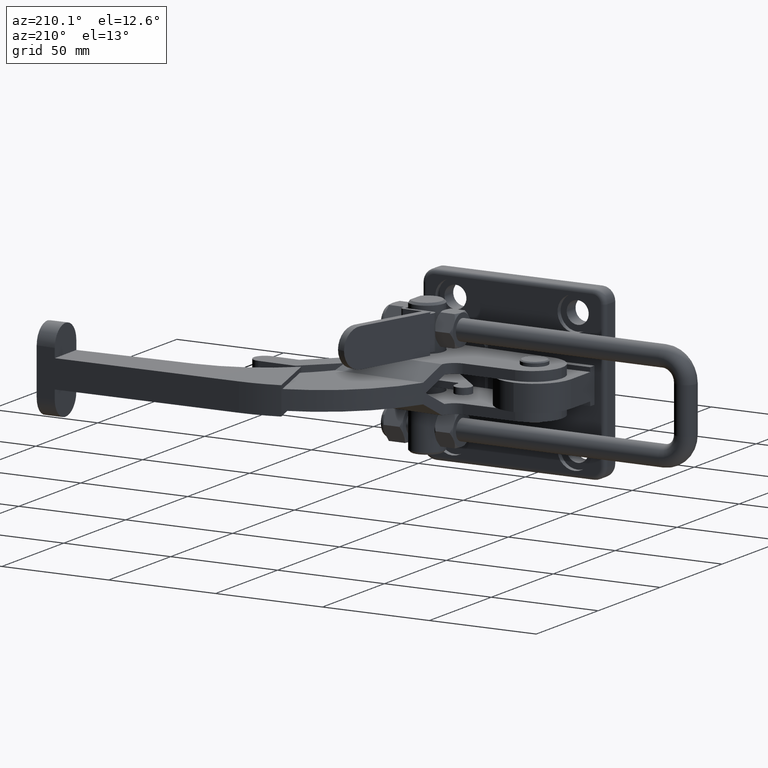
[diagram: clean part render]
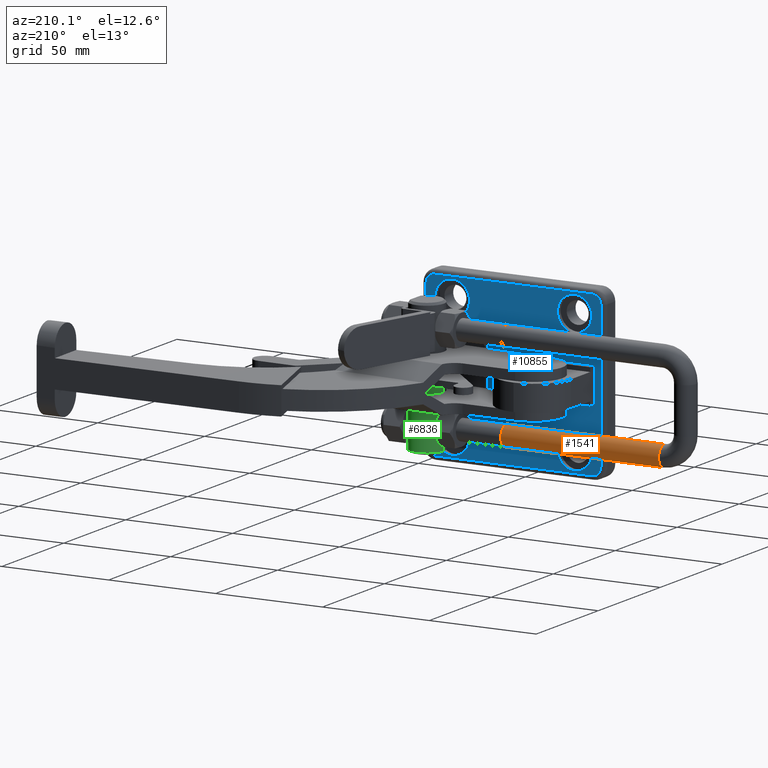
[diagram: same view with three faces highlighted in distinct colors, each labeled with its STEP entity id]
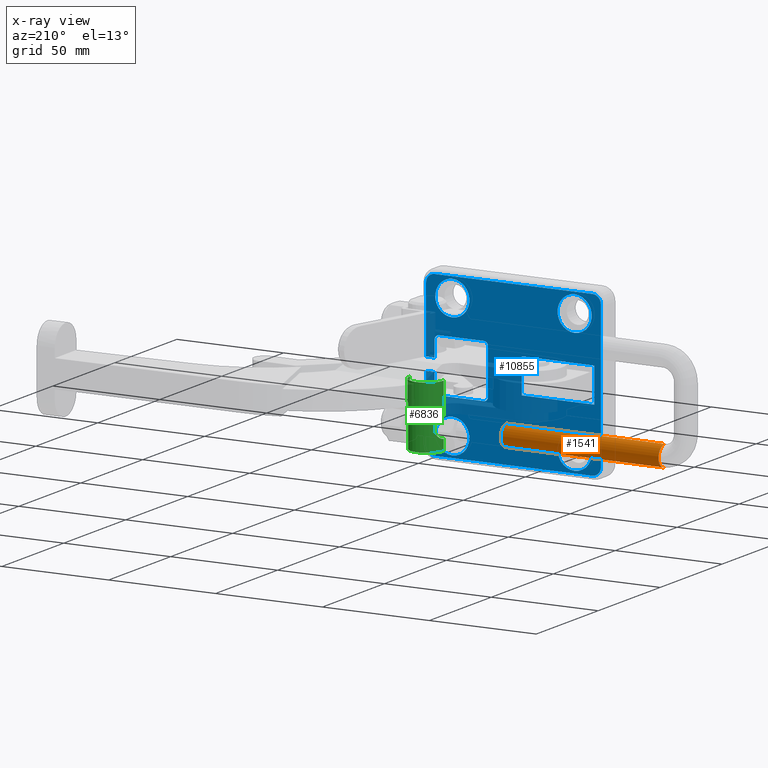
[diagram: x-ray of the same camera — body ghosted, the three highlighted faces saturated]
A machine part, auxiliary view with three faces highlighted in distinct colors.
The next image is the same camera in x-ray (body ghosted, the three faces saturated) — at least one of them is partly hidden behind the body in this view.
Their STEP definitions:

[orange] entity #1541 — the highlighted cylindrical surface (edge-blend (fillet) strip) has radius 4.8 mm, axis along (1, -0.0094, -0).
#68 = DIRECTION ( 'NONE',  ( 0.9999554806276920200, -0.009435929346993528500, -6.448701490263534400E-017 ) ) ;
#430 = DIRECTION ( 'NONE',  ( 0.9999554806276919100, -0.009435929346993528500, -6.448701490263533200E-017 ) ) ;
#556 = VERTEX_POINT ( 'NONE', #2407 ) ;
#653 = EDGE_CURVE ( 'NONE', #11789, #556, #8145, .T. ) ;
#940 = CARTESIAN_POINT ( 'NONE',  ( -81.68333289743378600, 28.55493690099337600, -25.49999999999996100 ) ) ;
#1089 = EDGE_CURVE ( 'NONE', #1533, #2440, #8614, .T. ) ;
#1533 = VERTEX_POINT ( 'NONE', #10164 ) ;
#1541 = ADVANCED_FACE ( 'NONE', ( #7523 ), #2678, .T. ) ;
#1637 = EDGE_LOOP ( 'NONE', ( #5199, #4474, #6189, #10182 ) ) ;
#2005 = LINE ( 'NONE', #940, #9322 ) ;
#2249 = DIRECTION ( 'NONE',  ( -1.807003620809174400E-016, 0.0000000000000000000, -1.000000000000000000 ) ) ;
#2407 = CARTESIAN_POINT ( 'NONE',  ( -7.486636234858880600, 27.85479094344645600, -25.49999999999996800 ) ) ;
#2440 = VERTEX_POINT ( 'NONE', #4470 ) ;
#2678 = CYLINDRICAL_SURFACE ( 'NONE', #5718, 4.799999999999998900 ) ;
#2847 = CARTESIAN_POINT ( 'NONE',  ( -81.68333289743378600, 28.55493690099337600, -20.69999999999996000 ) ) ;
#3820 = VECTOR ( 'NONE', #430, 1000.000000000000100 ) ;
#4470 = CARTESIAN_POINT ( 'NONE',  ( -81.68333289743378600, 28.55493690099337600, -15.89999999999996300 ) ) ;
#4474 = ORIENTED_EDGE ( 'NONE', *, *, #6827, .T. ) ;
#5199 = ORIENTED_EDGE ( 'NONE', *, *, #1089, .T. ) ;
#5718 = AXIS2_PLACEMENT_3D ( 'NONE', #2847, #68, #8311 ) ;
#5768 = EDGE_CURVE ( 'NONE', #1533, #556, #2005, .T. ) ;
#5797 = DIRECTION ( 'NONE',  ( -0.9999554806276920200, 0.009435929346993528500, 1.167914262708094500E-016 ) ) ;
#6038 = CARTESIAN_POINT ( 'NONE',  ( -7.486636234858880600, 27.85479094344645600, -15.89999999999997000 ) ) ;
#6189 = ORIENTED_EDGE ( 'NONE', *, *, #653, .T. ) ;
#6240 = LINE ( 'NONE', #6776, #3820 ) ;
#6776 = CARTESIAN_POINT ( 'NONE',  ( -81.68333289743378600, 28.55493690099337600, -15.89999999999996300 ) ) ;
#6827 = EDGE_CURVE ( 'NONE', #2440, #11789, #6240, .T. ) ;
#7325 = DIRECTION ( 'NONE',  ( 0.9999554806276919100, -0.009435929346993528500, -6.448701490263533200E-017 ) ) ;
#7347 = DIRECTION ( 'NONE',  ( 0.9999554806276920200, -0.009435929346993528500, -3.783995689991944200E-017 ) ) ;
#7523 = FACE_OUTER_BOUND ( 'NONE', #1637, .T. ) ;
#7624 = AXIS2_PLACEMENT_3D ( 'NONE', #9218, #7347, #8278 ) ;
#8072 = AXIS2_PLACEMENT_3D ( 'NONE', #8523, #5797, #2249 ) ;
#8145 = CIRCLE ( 'NONE', #8072, 4.799999999999998900 ) ;
#8278 = DIRECTION ( 'NONE',  ( 0.0000000000000000000, 0.0000000000000000000, -1.000000000000000000 ) ) ;
#8311 = DIRECTION ( 'NONE',  ( 0.0000000000000000000, 0.0000000000000000000, -1.000000000000000000 ) ) ;
#8523 = CARTESIAN_POINT ( 'NONE',  ( -7.486636234858894000, 27.85479094344647100, -20.69999999999995000 ) ) ;
#8614 = CIRCLE ( 'NONE', #7624, 4.799999999999998900 ) ;
#9218 = CARTESIAN_POINT ( 'NONE',  ( -81.68333289743378600, 28.55493690099337600, -20.69999999999996000 ) ) ;
#9322 = VECTOR ( 'NONE', #7325, 1000.000000000000100 ) ;
#10164 = CARTESIAN_POINT ( 'NONE',  ( -81.68333289743378600, 28.55493690099337600, -25.49999999999996100 ) ) ;
#10182 = ORIENTED_EDGE ( 'NONE', *, *, #5768, .F. ) ;
#11789 = VERTEX_POINT ( 'NONE', #6038 ) ;

[blue] entity #10855 — the highlighted planar face has unit normal (0, 1, 0).
#24 = DIRECTION ( 'NONE',  ( 0.0000000000000000000, 0.0000000000000000000, 1.000000000000000000 ) ) ;
#86 = VERTEX_POINT ( 'NONE', #7499 ) ;
#166 = CARTESIAN_POINT ( 'NONE',  ( 34.89999999999998400, 9.600000000000047600, 12.50000000000002500 ) ) ;
#193 = LINE ( 'NONE', #6387, #6916 ) ;
#207 = CARTESIAN_POINT ( 'NONE',  ( -28.60000000000000100, 9.600000000000054700, 28.59999999999998700 ) ) ;
#230 = CARTESIAN_POINT ( 'NONE',  ( 28.59999999999998700, 9.600000000000049400, -28.60000000000000100 ) ) ;
#232 = EDGE_CURVE ( 'NONE', #86, #2616, #5147, .T. ) ;
#353 = ORIENTED_EDGE ( 'NONE', *, *, #10370, .F. ) ;
#447 = CARTESIAN_POINT ( 'NONE',  ( -28.60000000000000100, 9.600000000000054700, 20.59999999999998700 ) ) ;
#543 = VECTOR ( 'NONE', #4679, 1000.000000000000000 ) ;
#575 = DIRECTION ( 'NONE',  ( -1.214306433183765000E-016, -1.000000000000000000, -6.505213034913026600E-019 ) ) ;
#684 = CARTESIAN_POINT ( 'NONE',  ( 28.59999999999998700, 9.600000000000049400, 20.59999999999998700 ) ) ;
#709 = VECTOR ( 'NONE', #3487, 1000.000000000000000 ) ;
#735 = CARTESIAN_POINT ( 'NONE',  ( -28.60000000000000100, 9.600000000000054700, 28.59999999999998700 ) ) ;
#784 = DIRECTION ( 'NONE',  ( -0.0000000000000000000, -0.0000000000000000000, -1.000000000000000000 ) ) ;
#849 = CARTESIAN_POINT ( 'NONE',  ( -3.899999999999987000, 9.599999999999996100, 6.099999999999999600 ) ) ;
#877 = DIRECTION ( 'NONE',  ( -1.214306433183765000E-016, -1.000000000000000000, -6.505213034913026600E-019 ) ) ;
#896 = VERTEX_POINT ( 'NONE', #3593 ) ;
#939 = EDGE_CURVE ( 'NONE', #3423, #7610, #4731, .T. ) ;
#1010 = VERTEX_POINT ( 'NONE', #9889 ) ;
#1038 = VERTEX_POINT ( 'NONE', #11029 ) ;
#1142 = DIRECTION ( 'NONE',  ( 0.0000000000000000000, 0.0000000000000000000, 1.000000000000000000 ) ) ;
#1150 = CIRCLE ( 'NONE', #4448, 8.000000000000000000 ) ;
#1169 = DIRECTION ( 'NONE',  ( 0.0000000000000000000, 0.0000000000000000000, 1.000000000000000000 ) ) ;
#1170 = LINE ( 'NONE', #6251, #5734 ) ;
#1173 = DIRECTION ( 'NONE',  ( -1.214306433183765000E-016, -1.000000000000000000, -6.505213034913026600E-019 ) ) ;
#1224 = ORIENTED_EDGE ( 'NONE', *, *, #5640, .T. ) ;
#1241 = CARTESIAN_POINT ( 'NONE',  ( -36.90000000000001300, 9.600000000000056500, 37.69999999999999600 ) ) ;
#1257 = CARTESIAN_POINT ( 'NONE',  ( 13.89999999999999500, 9.600000000000051200, -12.50000000000003900 ) ) ;
#1264 = EDGE_CURVE ( 'NONE', #8518, #896, #5466, .T. ) ;
#1298 = CARTESIAN_POINT ( 'NONE',  ( 13.89999999999999500, 9.600000000000051200, -10.50000000000003700 ) ) ;
#1348 = EDGE_CURVE ( 'NONE', #2278, #10728, #8541, .T. ) ;
#1366 = CIRCLE ( 'NONE', #1463, 8.000000000000003600 ) ;
#1406 = EDGE_CURVE ( 'NONE', #9157, #10806, #2248, .T. ) ;
#1451 = DIRECTION ( 'NONE',  ( 1.214306433183765000E-016, 1.000000000000000000, 6.505213034913026600E-019 ) ) ;
#1463 = AXIS2_PLACEMENT_3D ( 'NONE', #6041, #575, #6957 ) ;
#1485 = ORIENTED_EDGE ( 'NONE', *, *, #3883, .T. ) ;
#1677 = DIRECTION ( 'NONE',  ( 0.0000000000000000000, 0.0000000000000000000, 1.000000000000000000 ) ) ;
#1687 = CARTESIAN_POINT ( 'NONE',  ( -37.89999999999999100, 9.600000000000056500, -8.099999999999999600 ) ) ;
#1732 = VECTOR ( 'NONE', #11666, 1000.000000000000000 ) ;
#1806 = CIRCLE ( 'NONE', #10181, 4.000000000000003600 ) ;
#1906 = ORIENTED_EDGE ( 'NONE', *, *, #5380, .F. ) ;
#2018 = VERTEX_POINT ( 'NONE', #4936 ) ;
#2040 = VERTEX_POINT ( 'NONE', #7301 ) ;
#2099 = EDGE_CURVE ( 'NONE', #11144, #1038, #1806, .T. ) ;
#2155 = ORIENTED_EDGE ( 'NONE', *, *, #7625, .T. ) ;
#2164 = ORIENTED_EDGE ( 'NONE', *, *, #4826, .F. ) ;
#2182 = DIRECTION ( 'NONE',  ( 0.0000000000000000000, 0.0000000000000000000, 1.000000000000000000 ) ) ;
#2217 = DIRECTION ( 'NONE',  ( 0.0000000000000000000, 0.0000000000000000000, 1.000000000000000000 ) ) ;
#2221 = VERTEX_POINT ( 'NONE', #10561 ) ;
#2248 = CIRCLE ( 'NONE', #9657, 2.000000000000001800 ) ;
#2278 = VERTEX_POINT ( 'NONE', #6914 ) ;
#2287 = VECTOR ( 'NONE', #9101, 1000.000000000000000 ) ;
#2342 = CARTESIAN_POINT ( 'NONE',  ( -28.60000000000000100, 9.600000000000054700, -20.60000000000000100 ) ) ;
#2362 = EDGE_CURVE ( 'NONE', #896, #1010, #8654, .T. ) ;
#2376 = CARTESIAN_POINT ( 'NONE',  ( -28.60000000000000100, 9.600000000000054700, 36.59999999999998700 ) ) ;
#2412 = DIRECTION ( 'NONE',  ( 1.214306433183765000E-016, 1.000000000000000000, 6.505213034913026600E-019 ) ) ;
#2496 = VECTOR ( 'NONE', #9504, 1000.000000000000000 ) ;
#2581 = CARTESIAN_POINT ( 'NONE',  ( -37.89999999999999100, 9.599999999999999600, 6.099999999999999600 ) ) ;
#2597 = EDGE_LOOP ( 'NONE', ( #7208, #9648 ) ) ;
#2609 = EDGE_LOOP ( 'NONE', ( #11758, #2155 ) ) ;
#2616 = VERTEX_POINT ( 'NONE', #4828 ) ;
#2703 = LINE ( 'NONE', #11115, #543 ) ;
#2764 = VERTEX_POINT ( 'NONE', #5943 ) ;
#2771 = CARTESIAN_POINT ( 'NONE',  ( -91.06957981114061300, 9.600000000000061800, 7.786935825212733900E-017 ) ) ;
#2781 = VERTEX_POINT ( 'NONE', #6856 ) ;
#2819 = CIRCLE ( 'NONE', #10152, 4.000000000000003600 ) ;
#2856 = DIRECTION ( 'NONE',  ( 1.214306433183765000E-016, 1.000000000000000000, 6.505213034913026600E-019 ) ) ;
#2904 = CIRCLE ( 'NONE', #9293, 2.000000000000001800 ) ;
#2976 = FACE_BOUND ( 'NONE', #9956, .T. ) ;
#2985 = CARTESIAN_POINT ( 'NONE',  ( 13.89999999999999500, 9.600000000000051200, 12.49999999999996300 ) ) ;
#3077 = AXIS2_PLACEMENT_3D ( 'NONE', #8321, #2856, #9257 ) ;
#3142 = ORIENTED_EDGE ( 'NONE', *, *, #1264, .T. ) ;
#3244 = AXIS2_PLACEMENT_3D ( 'NONE', #2771, #5508, #24 ) ;
#3299 = ORIENTED_EDGE ( 'NONE', *, *, #1348, .F. ) ;
#3336 = CARTESIAN_POINT ( 'NONE',  ( -28.60000000000000100, 9.600000000000054700, -28.60000000000000100 ) ) ;
#3381 = EDGE_LOOP ( 'NONE', ( #7904, #6840, #10801, #1906 ) ) ;
#3403 = EDGE_CURVE ( 'NONE', #2018, #2040, #1366, .T. ) ;
#3423 = VERTEX_POINT ( 'NONE', #11564 ) ;
#3424 = LINE ( 'NONE', #10834, #709 ) ;
#3487 = DIRECTION ( 'NONE',  ( -1.000000000000000000, 1.040834085586084300E-016, -6.979551485375434800E-019 ) ) ;
#3492 = VERTEX_POINT ( 'NONE', #684 ) ;
#3532 = EDGE_CURVE ( 'NONE', #11235, #6110, #5079, .T. ) ;
#3589 = EDGE_CURVE ( 'NONE', #7061, #9157, #193, .T. ) ;
#3593 = CARTESIAN_POINT ( 'NONE',  ( 36.89999999999999100, 9.600000000000047600, -37.70000000000002400 ) ) ;
#3730 = ORIENTED_EDGE ( 'NONE', *, *, #3403, .T. ) ;
#3741 = ORIENTED_EDGE ( 'NONE', *, *, #3589, .F. ) ;
#3772 = VERTEX_POINT ( 'NONE', #6709 ) ;
#3774 = EDGE_CURVE ( 'NONE', #2616, #3772, #4919, .T. ) ;
#3818 = LINE ( 'NONE', #6902, #5964 ) ;
#3861 = AXIS2_PLACEMENT_3D ( 'NONE', #6632, #1173, #7557 ) ;
#3880 = VECTOR ( 'NONE', #7141, 1000.000000000000000 ) ;
#3883 = EDGE_CURVE ( 'NONE', #9402, #5395, #4054, .T. ) ;
#3897 = VERTEX_POINT ( 'NONE', #2376 ) ;
#3933 = EDGE_CURVE ( 'NONE', #3492, #2764, #8349, .T. ) ;
#3961 = CARTESIAN_POINT ( 'NONE',  ( -3.899999999999993700, 9.600000000000052900, -8.099999999999999600 ) ) ;
#3973 = ORIENTED_EDGE ( 'NONE', *, *, #232, .F. ) ;
#3987 = DIRECTION ( 'NONE',  ( -0.0000000000000000000, 0.0000000000000000000, -1.000000000000000000 ) ) ;
#4054 = CIRCLE ( 'NONE', #5280, 4.000000000000003600 ) ;
#4071 = AXIS2_PLACEMENT_3D ( 'NONE', #735, #7130, #1677 ) ;
#4093 = ORIENTED_EDGE ( 'NONE', *, *, #11342, .T. ) ;
#4138 = CARTESIAN_POINT ( 'NONE',  ( 36.89999999999999100, 9.600000000000047600, 37.69999999999999600 ) ) ;
#4227 = CARTESIAN_POINT ( 'NONE',  ( 11.90000000000000000, 9.600000000000051200, 10.49999999999996800 ) ) ;
#4247 = DIRECTION ( 'NONE',  ( 0.0000000000000000000, 0.0000000000000000000, 1.000000000000000000 ) ) ;
#4386 = LINE ( 'NONE', #10431, #9285 ) ;
#4448 = AXIS2_PLACEMENT_3D ( 'NONE', #207, #6598, #1142 ) ;
#4476 = VERTEX_POINT ( 'NONE', #10151 ) ;
#4494 = CARTESIAN_POINT ( 'NONE',  ( -36.89999999999996300, 9.600000000000056500, -33.69999999999999600 ) ) ;
#4525 = AXIS2_PLACEMENT_3D ( 'NONE', #6328, #877, #7267 ) ;
#4530 = VECTOR ( 'NONE', #6101, 1000.000000000000000 ) ;
#4679 = DIRECTION ( 'NONE',  ( -0.0000000000000000000, 0.0000000000000000000, -1.000000000000000000 ) ) ;
#4731 = LINE ( 'NONE', #10736, #1732 ) ;
#4807 = VERTEX_POINT ( 'NONE', #3961 ) ;
#4826 = EDGE_CURVE ( 'NONE', #3772, #2278, #2904, .T. ) ;
#4828 = CARTESIAN_POINT ( 'NONE',  ( 34.89999999999998400, 9.600000000000047600, -12.50000000000003900 ) ) ;
#4919 = LINE ( 'NONE', #1257, #2496 ) ;
#4936 = CARTESIAN_POINT ( 'NONE',  ( 28.59999999999998700, 9.600000000000049400, -36.60000000000000900 ) ) ;
#4948 = CARTESIAN_POINT ( 'NONE',  ( -40.90000000000002000, 9.600000000000056500, 33.69999999999999600 ) ) ;
#5079 = LINE ( 'NONE', #2581, #9675 ) ;
#5118 = EDGE_CURVE ( 'NONE', #2764, #3492, #11063, .T. ) ;
#5147 = CIRCLE ( 'NONE', #5470, 2.000000000000001800 ) ;
#5165 = CARTESIAN_POINT ( 'NONE',  ( 28.59999999999998700, 9.600000000000049400, 28.59999999999998700 ) ) ;
#5250 = CARTESIAN_POINT ( 'NONE',  ( 36.89999999999999100, 9.600000000000047600, 37.69999999999999600 ) ) ;
#5280 = AXIS2_PLACEMENT_3D ( 'NONE', #6908, #1451, #7828 ) ;
#5380 = EDGE_CURVE ( 'NONE', #11235, #4476, #6279, .T. ) ;
#5388 = CARTESIAN_POINT ( 'NONE',  ( 34.89999999999998400, 9.600000000000047600, 10.50000000000002300 ) ) ;
#5395 = VERTEX_POINT ( 'NONE', #1241 ) ;
#5414 = DIRECTION ( 'NONE',  ( 0.0000000000000000000, 0.0000000000000000000, 1.000000000000000000 ) ) ;
#5466 = CIRCLE ( 'NONE', #9261, 4.000000000000003600 ) ;
#5470 = AXIS2_PLACEMENT_3D ( 'NONE', #5680, #10826, #9893 ) ;
#5508 = DIRECTION ( 'NONE',  ( 1.214306433183765000E-016, 1.000000000000000000, -0.0000000000000000000 ) ) ;
#5640 = EDGE_CURVE ( 'NONE', #6417, #3897, #10453, .T. ) ;
#5670 = EDGE_CURVE ( 'NONE', #7604, #2221, #3424, .T. ) ;
#5680 = CARTESIAN_POINT ( 'NONE',  ( 34.89999999999998400, 9.600000000000047600, -10.50000000000003700 ) ) ;
#5734 = VECTOR ( 'NONE', #784, 1000.000000000000000 ) ;
#5741 = ORIENTED_EDGE ( 'NONE', *, *, #5916, .T. ) ;
#5778 = VERTEX_POINT ( 'NONE', #6396 ) ;
#5809 = ORIENTED_EDGE ( 'NONE', *, *, #10672, .T. ) ;
#5811 = EDGE_LOOP ( 'NONE', ( #11534, #5809, #3142, #7864, #4093, #10948, #1485, #10958, #7992, #6710, #8515, #10722, #10734, #3741, #9628, #3299, #2164, #10136, #3973, #353 ) ) ;
#5852 = CIRCLE ( 'NONE', #7736, 8.000000000000000000 ) ;
#5916 = EDGE_CURVE ( 'NONE', #3897, #6417, #1150, .T. ) ;
#5943 = CARTESIAN_POINT ( 'NONE',  ( 28.59999999999998700, 9.600000000000049400, 36.59999999999998700 ) ) ;
#5964 = VECTOR ( 'NONE', #7821, 1000.000000000000000 ) ;
#6041 = CARTESIAN_POINT ( 'NONE',  ( 28.59999999999998700, 9.600000000000049400, -28.60000000000000100 ) ) ;
#6066 = DIRECTION ( 'NONE',  ( 0.0000000000000000000, 0.0000000000000000000, 1.000000000000000000 ) ) ;
#6088 = CARTESIAN_POINT ( 'NONE',  ( -37.89999999999999100, 9.600000000000056500, 8.099999999999999600 ) ) ;
#6101 = DIRECTION ( 'NONE',  ( 3.304235192336774500E-016, -3.439160614977206000E-032, 1.000000000000000000 ) ) ;
#6110 = VERTEX_POINT ( 'NONE', #6879 ) ;
#6199 = EDGE_CURVE ( 'NONE', #5395, #11144, #9309, .T. ) ;
#6251 = CARTESIAN_POINT ( 'NONE',  ( 40.89999999999999100, 9.600000000000047600, 1.699782059316492000E-016 ) ) ;
#6279 = LINE ( 'NONE', #11259, #10902 ) ;
#6286 = DIRECTION ( 'NONE',  ( 0.0000000000000000000, 0.0000000000000000000, 1.000000000000000000 ) ) ;
#6328 = CARTESIAN_POINT ( 'NONE',  ( 28.59999999999998700, 9.600000000000049400, 28.59999999999998700 ) ) ;
#6387 = CARTESIAN_POINT ( 'NONE',  ( 13.89999999999999500, 9.600000000000051200, 12.49999999999996300 ) ) ;
#6396 = CARTESIAN_POINT ( 'NONE',  ( -28.60000000000000100, 9.600000000000054700, -36.60000000000000100 ) ) ;
#6417 = VERTEX_POINT ( 'NONE', #447 ) ;
#6468 = CARTESIAN_POINT ( 'NONE',  ( 40.89999999999999100, 9.600000000000047600, 3.000000000000000000 ) ) ;
#6472 = VERTEX_POINT ( 'NONE', #2342 ) ;
#6552 = VECTOR ( 'NONE', #11667, 1000.000000000000000 ) ;
#6593 = CIRCLE ( 'NONE', #3861, 8.000000000000000000 ) ;
#6598 = DIRECTION ( 'NONE',  ( -1.214306433183765000E-016, -1.000000000000000000, -6.505213034913026600E-019 ) ) ;
#6625 = DIRECTION ( 'NONE',  ( -1.214306433183765000E-016, -1.000000000000000000, -6.505213034913026600E-019 ) ) ;
#6632 = CARTESIAN_POINT ( 'NONE',  ( -28.60000000000000100, 9.600000000000054700, -28.60000000000000100 ) ) ;
#6709 = CARTESIAN_POINT ( 'NONE',  ( 13.89999999999999500, 9.600000000000051200, -12.50000000000003900 ) ) ;
#6710 = ORIENTED_EDGE ( 'NONE', *, *, #7989, .T. ) ;
#6779 = EDGE_CURVE ( 'NONE', #10806, #2221, #4386, .T. ) ;
#6840 = ORIENTED_EDGE ( 'NONE', *, *, #7969, .F. ) ;
#6856 = CARTESIAN_POINT ( 'NONE',  ( -40.89999999999996300, 9.600000000000056500, -33.69999999999999600 ) ) ;
#6879 = CARTESIAN_POINT ( 'NONE',  ( -37.89999999999998400, 9.600000000000056500, -8.099999999999999600 ) ) ;
#6902 = CARTESIAN_POINT ( 'NONE',  ( 40.89999999999999100, 9.600000000000047600, 1.699782059316492000E-016 ) ) ;
#6908 = CARTESIAN_POINT ( 'NONE',  ( -36.90000000000001300, 9.600000000000056500, 33.69999999999999600 ) ) ;
#6914 = CARTESIAN_POINT ( 'NONE',  ( 11.89999999999998100, 9.600000000000051200, -10.50000000000003700 ) ) ;
#6916 = VECTOR ( 'NONE', #8240, 1000.000000000000000 ) ;
#6955 = FACE_BOUND ( 'NONE', #3381, .T. ) ;
#6957 = DIRECTION ( 'NONE',  ( 0.0000000000000000000, 0.0000000000000000000, 1.000000000000000000 ) ) ;
#7061 = VERTEX_POINT ( 'NONE', #2985 ) ;
#7080 = DIRECTION ( 'NONE',  ( -1.000000000000000000, 1.040834085586084300E-016, 3.753938553613395300E-016 ) ) ;
#7087 = CARTESIAN_POINT ( 'NONE',  ( -40.90000000000002000, 9.600000000000056500, 33.69999999999999600 ) ) ;
#7111 = AXIS2_PLACEMENT_3D ( 'NONE', #5165, #11582, #6066 ) ;
#7130 = DIRECTION ( 'NONE',  ( -1.214306433183765000E-016, -1.000000000000000000, -6.505213034913026600E-019 ) ) ;
#7141 = DIRECTION ( 'NONE',  ( -1.000000000000000000, 1.040834085586084300E-016, -6.979551485375434800E-019 ) ) ;
#7208 = ORIENTED_EDGE ( 'NONE', *, *, #3933, .T. ) ;
#7267 = DIRECTION ( 'NONE',  ( 0.0000000000000000000, 0.0000000000000000000, 1.000000000000000000 ) ) ;
#7301 = CARTESIAN_POINT ( 'NONE',  ( 28.59999999999998700, 9.600000000000049400, -20.59999999999999800 ) ) ;
#7418 = EDGE_CURVE ( 'NONE', #2781, #9402, #11792, .T. ) ;
#7499 = CARTESIAN_POINT ( 'NONE',  ( 36.89999999999999100, 9.600000000000047600, -10.50000000000003700 ) ) ;
#7557 = DIRECTION ( 'NONE',  ( 0.0000000000000000000, 0.0000000000000000000, 1.000000000000000000 ) ) ;
#7604 = VERTEX_POINT ( 'NONE', #6468 ) ;
#7610 = VERTEX_POINT ( 'NONE', #11153 ) ;
#7619 = DIRECTION ( 'NONE',  ( 1.000000000000000000, -1.040834085586084300E-016, 6.979551485375434800E-019 ) ) ;
#7625 = EDGE_CURVE ( 'NONE', #6472, #5778, #6593, .T. ) ;
#7669 = DIRECTION ( 'NONE',  ( 1.214306433183765000E-016, 1.000000000000000000, 6.505213034913026600E-019 ) ) ;
#7736 = AXIS2_PLACEMENT_3D ( 'NONE', #3336, #9753, #4247 ) ;
#7821 = DIRECTION ( 'NONE',  ( -0.0000000000000000000, -0.0000000000000000000, -1.000000000000000000 ) ) ;
#7828 = DIRECTION ( 'NONE',  ( 0.0000000000000000000, 0.0000000000000000000, 1.000000000000000000 ) ) ;
#7864 = ORIENTED_EDGE ( 'NONE', *, *, #2362, .T. ) ;
#7873 = CARTESIAN_POINT ( 'NONE',  ( 36.89999999999999100, 9.600000000000047600, -33.70000000000002400 ) ) ;
#7904 = ORIENTED_EDGE ( 'NONE', *, *, #3532, .T. ) ;
#7969 = EDGE_CURVE ( 'NONE', #4807, #6110, #8742, .T. ) ;
#7989 = EDGE_CURVE ( 'NONE', #1038, #7604, #1170, .T. ) ;
#7992 = ORIENTED_EDGE ( 'NONE', *, *, #2099, .T. ) ;
#7999 = DIRECTION ( 'NONE',  ( -0.0000000000000000000, 0.0000000000000000000, -1.000000000000000000 ) ) ;
#8011 = EDGE_LOOP ( 'NONE', ( #3730, #10790 ) ) ;
#8223 = PLANE ( 'NONE',  #3244 ) ;
#8240 = DIRECTION ( 'NONE',  ( 1.000000000000000000, -1.040834085586084300E-016, 2.974509628251636900E-015 ) ) ;
#8321 = CARTESIAN_POINT ( 'NONE',  ( 13.89999999999999500, 9.600000000000051200, 10.49999999999996800 ) ) ;
#8349 = CIRCLE ( 'NONE', #7111, 8.000000000000000000 ) ;
#8372 = VECTOR ( 'NONE', #7080, 1000.000000000000000 ) ;
#8515 = ORIENTED_EDGE ( 'NONE', *, *, #5670, .T. ) ;
#8518 = VERTEX_POINT ( 'NONE', #9110 ) ;
#8541 = LINE ( 'NONE', #10729, #4530 ) ;
#8654 = LINE ( 'NONE', #11659, #8372 ) ;
#8742 = LINE ( 'NONE', #1687, #3880 ) ;
#8797 = DIRECTION ( 'NONE',  ( 0.0000000000000000000, 0.0000000000000000000, 1.000000000000000000 ) ) ;
#8882 = DIRECTION ( 'NONE',  ( -8.236075850334991000E-016, 8.572388476501051500E-032, 1.000000000000000000 ) ) ;
#8883 = EDGE_CURVE ( 'NONE', #5778, #6472, #5852, .T. ) ;
#9029 = EDGE_CURVE ( 'NONE', #4476, #4807, #9592, .T. ) ;
#9101 = DIRECTION ( 'NONE',  ( -0.0000000000000000000, 0.0000000000000000000, -1.000000000000000000 ) ) ;
#9110 = CARTESIAN_POINT ( 'NONE',  ( 40.89999999999999100, 9.600000000000047600, -33.70000000000002400 ) ) ;
#9157 = VERTEX_POINT ( 'NONE', #166 ) ;
#9232 = AXIS2_PLACEMENT_3D ( 'NONE', #230, #6625, #1169 ) ;
#9257 = DIRECTION ( 'NONE',  ( 0.0000000000000000000, 0.0000000000000000000, 1.000000000000000000 ) ) ;
#9261 = AXIS2_PLACEMENT_3D ( 'NONE', #7873, #2412, #8797 ) ;
#9285 = VECTOR ( 'NONE', #3987, 1000.000000000000000 ) ;
#9293 = AXIS2_PLACEMENT_3D ( 'NONE', #1298, #7669, #2217 ) ;
#9309 = LINE ( 'NONE', #5250, #6552 ) ;
#9402 = VERTEX_POINT ( 'NONE', #4948 ) ;
#9419 = FACE_OUTER_BOUND ( 'NONE', #5811, .T. ) ;
#9504 = DIRECTION ( 'NONE',  ( -1.000000000000000000, 1.040834085586084300E-016, -6.979551485375434800E-019 ) ) ;
#9592 = LINE ( 'NONE', #849, #2287 ) ;
#9628 = ORIENTED_EDGE ( 'NONE', *, *, #10358, .F. ) ;
#9648 = ORIENTED_EDGE ( 'NONE', *, *, #5118, .T. ) ;
#9657 = AXIS2_PLACEMENT_3D ( 'NONE', #5388, #11808, #6286 ) ;
#9675 = VECTOR ( 'NONE', #7999, 1000.000000000000000 ) ;
#9716 = FACE_BOUND ( 'NONE', #2597, .T. ) ;
#9725 = CIRCLE ( 'NONE', #3077, 1.999999999999994900 ) ;
#9753 = DIRECTION ( 'NONE',  ( -1.214306433183765000E-016, -1.000000000000000000, -6.505213034913026600E-019 ) ) ;
#9889 = CARTESIAN_POINT ( 'NONE',  ( -36.89999999999996300, 9.600000000000056500, -37.69999999999999600 ) ) ;
#9893 = DIRECTION ( 'NONE',  ( 0.0000000000000000000, 0.0000000000000000000, 1.000000000000000000 ) ) ;
#9956 = EDGE_LOOP ( 'NONE', ( #1224, #5741 ) ) ;
#9961 = CARTESIAN_POINT ( 'NONE',  ( 36.89999999999999100, 9.600000000000047600, 10.50000000000002300 ) ) ;
#9982 = FACE_BOUND ( 'NONE', #8011, .T. ) ;
#10136 = ORIENTED_EDGE ( 'NONE', *, *, #3774, .F. ) ;
#10151 = CARTESIAN_POINT ( 'NONE',  ( -3.899999999999987000, 9.600000000000052900, 8.099999999999999600 ) ) ;
#10152 = AXIS2_PLACEMENT_3D ( 'NONE', #4494, #10917, #5414 ) ;
#10181 = AXIS2_PLACEMENT_3D ( 'NONE', #10639, #10874, #2182 ) ;
#10358 = EDGE_CURVE ( 'NONE', #10728, #7061, #9725, .T. ) ;
#10370 = EDGE_CURVE ( 'NONE', #7610, #86, #2703, .T. ) ;
#10431 = CARTESIAN_POINT ( 'NONE',  ( 36.89999999999999100, 9.600000000000047600, -10.50000000000003700 ) ) ;
#10440 = EDGE_CURVE ( 'NONE', #2040, #2018, #10710, .T. ) ;
#10453 = CIRCLE ( 'NONE', #4071, 8.000000000000000000 ) ;
#10561 = CARTESIAN_POINT ( 'NONE',  ( 36.89999999999999100, 9.600000000000047600, 3.000000000000000000 ) ) ;
#10639 = CARTESIAN_POINT ( 'NONE',  ( 36.89999999999999100, 9.600000000000047600, 33.69999999999999600 ) ) ;
#10672 = EDGE_CURVE ( 'NONE', #3423, #8518, #3818, .T. ) ;
#10710 = CIRCLE ( 'NONE', #9232, 8.000000000000003600 ) ;
#10722 = ORIENTED_EDGE ( 'NONE', *, *, #6779, .F. ) ;
#10728 = VERTEX_POINT ( 'NONE', #4227 ) ;
#10729 = CARTESIAN_POINT ( 'NONE',  ( 11.89999999999999300, 9.600000000000051200, -10.50000000000003700 ) ) ;
#10734 = ORIENTED_EDGE ( 'NONE', *, *, #1406, .F. ) ;
#10736 = CARTESIAN_POINT ( 'NONE',  ( -91.06957981114061300, 9.600000000000061800, -3.000000000000000000 ) ) ;
#10790 = ORIENTED_EDGE ( 'NONE', *, *, #10440, .T. ) ;
#10801 = ORIENTED_EDGE ( 'NONE', *, *, #9029, .F. ) ;
#10806 = VERTEX_POINT ( 'NONE', #9961 ) ;
#10826 = DIRECTION ( 'NONE',  ( 1.214306433183765000E-016, 1.000000000000000000, 6.505213034913026600E-019 ) ) ;
#10834 = CARTESIAN_POINT ( 'NONE',  ( -91.06957981114061300, 9.600000000000061800, 3.000000000000000000 ) ) ;
#10855 = ADVANCED_FACE ( 'NONE', ( #2976, #9716, #9982, #11850, #9419, #6955 ), #8223, .T. ) ;
#10874 = DIRECTION ( 'NONE',  ( 1.214306433183765000E-016, 1.000000000000000000, 6.505213034913026600E-019 ) ) ;
#10902 = VECTOR ( 'NONE', #7619, 1000.000000000000000 ) ;
#10917 = DIRECTION ( 'NONE',  ( 1.214306433183765000E-016, 1.000000000000000000, 6.505213034913026600E-019 ) ) ;
#10948 = ORIENTED_EDGE ( 'NONE', *, *, #7418, .T. ) ;
#10958 = ORIENTED_EDGE ( 'NONE', *, *, #6199, .T. ) ;
#11029 = CARTESIAN_POINT ( 'NONE',  ( 40.89999999999999100, 9.600000000000047600, 33.69999999999999600 ) ) ;
#11063 = CIRCLE ( 'NONE', #4525, 8.000000000000000000 ) ;
#11115 = CARTESIAN_POINT ( 'NONE',  ( 36.89999999999999100, 9.600000000000047600, -10.50000000000003700 ) ) ;
#11144 = VERTEX_POINT ( 'NONE', #4138 ) ;
#11153 = CARTESIAN_POINT ( 'NONE',  ( 36.89999999999999100, 9.600000000000047600, -3.000000000000000000 ) ) ;
#11235 = VERTEX_POINT ( 'NONE', #6088 ) ;
#11259 = CARTESIAN_POINT ( 'NONE',  ( -37.89999999999999100, 9.600000000000056500, 8.099999999999999600 ) ) ;
#11342 = EDGE_CURVE ( 'NONE', #1010, #2781, #2819, .T. ) ;
#11513 = VECTOR ( 'NONE', #8882, 1000.000000000000000 ) ;
#11534 = ORIENTED_EDGE ( 'NONE', *, *, #939, .F. ) ;
#11564 = CARTESIAN_POINT ( 'NONE',  ( 40.89999999999999100, 9.600000000000047600, -3.000000000000000000 ) ) ;
#11582 = DIRECTION ( 'NONE',  ( -1.214306433183765000E-016, -1.000000000000000000, -6.505213034913026600E-019 ) ) ;
#11659 = CARTESIAN_POINT ( 'NONE',  ( -91.06957981114064200, 9.600000000000061800, -37.69999999999997400 ) ) ;
#11666 = DIRECTION ( 'NONE',  ( -1.000000000000000000, 1.040834085586084300E-016, -6.979551485375434800E-019 ) ) ;
#11667 = DIRECTION ( 'NONE',  ( 1.000000000000000000, -1.040834085586084300E-016, 6.979551485375434800E-019 ) ) ;
#11758 = ORIENTED_EDGE ( 'NONE', *, *, #8883, .T. ) ;
#11792 = LINE ( 'NONE', #7087, #11513 ) ;
#11808 = DIRECTION ( 'NONE',  ( 1.214306433183765000E-016, 1.000000000000000000, 6.505213034913026600E-019 ) ) ;
#11850 = FACE_BOUND ( 'NONE', #2609, .T. ) ;

[green] entity #6836 — the highlighted cylindrical surface (edge-blend (fillet) strip) has radius 7.9 mm, axis along (0, -0, 1).
#9 = CARTESIAN_POINT ( 'NONE',  ( 22.21204153978354500, 27.57454384184075400, -15.89999999999997000 ) ) ;
#191 = VERTEX_POINT ( 'NONE', #3552 ) ;
#251 = AXIS2_PLACEMENT_3D ( 'NONE', #2677, #3567, #4496 ) ;
#335 = DIRECTION ( 'NONE',  ( 0.0000000000000000000, -1.000000000000000000, 0.0000000000000000000 ) ) ;
#354 = CARTESIAN_POINT ( 'NONE',  ( 23.76100729149638400, 32.19949272859746300, -21.97290795748754300 ) ) ;
#391 = CARTESIAN_POINT ( 'NONE',  ( 22.32170129849706800, 28.85092969845335600, -25.33787710134512800 ) ) ;
#513 = CIRCLE ( 'NONE', #3415, 7.900000000000002100 ) ;
#686 = VERTEX_POINT ( 'NONE', #6665 ) ;
#727 = CARTESIAN_POINT ( 'NONE',  ( 22.23796978953841100, 28.21739433872516000, -15.93248462023362100 ) ) ;
#765 = CARTESIAN_POINT ( 'NONE',  ( 23.64924080547595900, 32.04446478520432600, -18.97815958200854400 ) ) ;
#839 = ORIENTED_EDGE ( 'NONE', *, *, #8656, .T. ) ;
#1117 = CARTESIAN_POINT ( 'NONE',  ( 38.01133813370108100, 27.42545615815825500, -31.50000000000000000 ) ) ;
#1147 = DIRECTION ( 'NONE',  ( 1.119284656414895400E-017, -5.835477685239703500E-020, 1.000000000000000000 ) ) ;
#1292 = CARTESIAN_POINT ( 'NONE',  ( 23.52538312842254000, 31.86486112959513400, -22.85083748204109000 ) ) ;
#1302 = CARTESIAN_POINT ( 'NONE',  ( 38.01133813370108100, 27.42545615815825500, -1.400000000000019200 ) ) ;
#1331 = CARTESIAN_POINT ( 'NONE',  ( 22.21511255729135900, 27.89998934647599800, -25.49999999999997900 ) ) ;
#1671 = CARTESIAN_POINT ( 'NONE',  ( 22.32539205953216300, 28.84446962623920600, -16.06856308757300800 ) ) ;
#1706 = CARTESIAN_POINT ( 'NONE',  ( 23.75548037264865200, 32.19168464581253600, -19.42948868464617700 ) ) ;
#1930 = EDGE_CURVE ( 'NONE', #3971, #4390, #513, .T. ) ;
#2020 = VECTOR ( 'NONE', #3869, 1000.000000000000000 ) ;
#2053 = B_SPLINE_CURVE_WITH_KNOTS ( 'NONE', 3,
 ( #5292, #2536, #727, #7123, #1671, #8044, #2582, #8963, #3478, #9899, #4399, #10828, #5328, #11738, #6231, #765, #7163, #1706, #8077, #2624, #9006, #3517 ),
 .UNSPECIFIED., .F., .F.,
 ( 4, 2, 2, 2, 2, 2, 2, 2, 2, 2, 4 ),
 ( 0.01541168358939840200, 0.01637309432767694600, 0.01685379969681621500, 0.01733450506595548800, 0.01829591580423402300, 0.01925732654251255400, 0.02021873728079108900, 0.02118014801906962400, 0.02166085338820889600, 0.02214155875734816900, 0.02310296949562671800 ),
 .UNSPECIFIED. ) ;
#2208 = CARTESIAN_POINT ( 'NONE',  ( 23.22496446954350400, 31.37586048184173000, -23.63470450677531400 ) ) ;
#2210 = DIRECTION ( 'NONE',  ( 1.119284656414895400E-017, -5.835477685239703500E-020, 1.000000000000000000 ) ) ;
#2265 = VECTOR ( 'NONE', #2210, 1000.000000000000000 ) ;
#2502 = VERTEX_POINT ( 'NONE', #9121 ) ;
#2536 = CARTESIAN_POINT ( 'NONE',  ( 22.21509959965751000, 27.89861618475525200, -15.89999999999996700 ) ) ;
#2582 = CARTESIAN_POINT ( 'NONE',  ( 22.41735927661337500, 29.29707142756239000, -16.21768192143997200 ) ) ;
#2624 = CARTESIAN_POINT ( 'NONE',  ( 23.85643993492416100, 32.32577912302819800, -20.05079555058650300 ) ) ;
#2627 = ORIENTED_EDGE ( 'NONE', *, *, #5316, .F. ) ;
#2677 = CARTESIAN_POINT ( 'NONE',  ( 30.11168983674231500, 27.49999999999950300, -31.50000000000000000 ) ) ;
#2839 = LINE ( 'NONE', #6742, #2265 ) ;
#3109 = CARTESIAN_POINT ( 'NONE',  ( 22.90681528308801500, 30.74926790235889500, -24.30764014651713000 ) ) ;
#3252 = VECTOR ( 'NONE', #7723, 1000.000000000000000 ) ;
#3415 = AXIS2_PLACEMENT_3D ( 'NONE', #9580, #9748, #6783 ) ;
#3473 = CARTESIAN_POINT ( 'NONE',  ( 22.21204153978354500, 27.57454384184075400, -31.50000000000000000 ) ) ;
#3478 = CARTESIAN_POINT ( 'NONE',  ( 22.61480713697075000, 30.00625313798286300, -16.55211404406332700 ) ) ;
#3517 = CARTESIAN_POINT ( 'NONE',  ( 23.88270985989414900, 32.35899253426261200, -20.69999999999996700 ) ) ;
#3552 = CARTESIAN_POINT ( 'NONE',  ( 22.21204153978354500, 27.57454384184075400, -1.400000000000019200 ) ) ;
#3567 = DIRECTION ( 'NONE',  ( 1.119284656414895400E-017, -5.835477685239703500E-020, 1.000000000000000000 ) ) ;
#3869 = DIRECTION ( 'NONE',  ( 1.119284656414895400E-017, -5.835477685239703500E-020, 1.000000000000000000 ) ) ;
#3971 = VERTEX_POINT ( 'NONE', #7507 ) ;
#3991 = CARTESIAN_POINT ( 'NONE',  ( 23.88270985989414200, 32.35899253426261200, -21.02208074216416400 ) ) ;
#4031 = CARTESIAN_POINT ( 'NONE',  ( 22.66254528161001900, 30.13411872551490600, -24.76091364002904200 ) ) ;
#4052 = EDGE_CURVE ( 'NONE', #11379, #2502, #9646, .T. ) ;
#4289 = ORIENTED_EDGE ( 'NONE', *, *, #11868, .T. ) ;
#4390 = VERTEX_POINT ( 'NONE', #9113 ) ;
#4399 = CARTESIAN_POINT ( 'NONE',  ( 22.90827328747242900, 30.75239988896061400, -17.09527067378621400 ) ) ;
#4496 = DIRECTION ( 'NONE',  ( -0.9999554806276921300, 0.009435929346993584100, 0.0000000000000000000 ) ) ;
#4824 = ORIENTED_EDGE ( 'NONE', *, *, #8966, .F. ) ;
#4905 = AXIS2_PLACEMENT_3D ( 'NONE', #6606, #1147, #7531 ) ;
#4957 = CARTESIAN_POINT ( 'NONE',  ( 22.53118443148749600, 29.72857149712370600, -24.99092482742176800 ) ) ;
#5121 = CYLINDRICAL_SURFACE ( 'NONE', #251, 7.900000000000001200 ) ;
#5292 = CARTESIAN_POINT ( 'NONE',  ( 22.21204153978354500, 27.57454384184075400, -15.89999999999997000 ) ) ;
#5316 = EDGE_CURVE ( 'NONE', #686, #6364, #6869, .T. ) ;
#5328 = CARTESIAN_POINT ( 'NONE',  ( 23.22623938837925900, 31.37808250231411500, -17.76831048288375600 ) ) ;
#5453 = CARTESIAN_POINT ( 'NONE',  ( 23.88270985989414900, 32.35899253426261200, -20.69999999999996700 ) ) ;
#5806 = DIRECTION ( 'NONE',  ( -6.494464799301924000E-020, -7.683799999775721400E-020, -1.000000000000000000 ) ) ;
#5828 = CARTESIAN_POINT ( 'NONE',  ( 23.85748481357489600, 32.32714410648979000, -21.34104032318963800 ) ) ;
#5869 = CARTESIAN_POINT ( 'NONE',  ( 22.38042186626358900, 29.15129533536357800, -25.24405148190654600 ) ) ;
#6231 = CARTESIAN_POINT ( 'NONE',  ( 23.52402561589149600, 31.86283288426760400, -18.54497276619576200 ) ) ;
#6302 = ORIENTED_EDGE ( 'NONE', *, *, #10052, .T. ) ;
#6364 = VERTEX_POINT ( 'NONE', #1302 ) ;
#6378 = EDGE_LOOP ( 'NONE', ( #2627, #839, #6302, #6711, #4289, #9321, #4824, #9311, #8864 ) ) ;
#6529 = FACE_OUTER_BOUND ( 'NONE', #6378, .T. ) ;
#6606 = CARTESIAN_POINT ( 'NONE',  ( 30.11168983674231500, 27.49999999999950300, -11.00000000000000000 ) ) ;
#6665 = CARTESIAN_POINT ( 'NONE',  ( 38.01133813370108100, 27.42545615815825500, -11.00000000000000000 ) ) ;
#6680 = CARTESIAN_POINT ( 'NONE',  ( 35.66495593502213500, 33.11882867167977900, -11.00000000000000000 ) ) ;
#6711 = ORIENTED_EDGE ( 'NONE', *, *, #1930, .T. ) ;
#6737 = CARTESIAN_POINT ( 'NONE',  ( 23.69168871633058200, 32.10597811008916800, -22.27447727468550600 ) ) ;
#6742 = CARTESIAN_POINT ( 'NONE',  ( 22.21204153978354500, 27.57454384184075400, -31.50000000000000000 ) ) ;
#6780 = CARTESIAN_POINT ( 'NONE',  ( 22.23895643250304800, 28.22732470185715700, -25.46604088206245500 ) ) ;
#6783 = DIRECTION ( 'NONE',  ( 0.9999554806276920200, -0.009435929346994460100, 0.0000000000000000000 ) ) ;
#6836 = ADVANCED_FACE ( 'NONE', ( #6529 ), #5121, .T. ) ;
#6869 = LINE ( 'NONE', #1117, #2020 ) ;
#6938 = VERTEX_POINT ( 'NONE', #9 ) ;
#7123 = CARTESIAN_POINT ( 'NONE',  ( 22.29991863425715300, 28.68796514459248900, -16.02835782188562800 ) ) ;
#7163 = CARTESIAN_POINT ( 'NONE',  ( 23.68788790038443200, 32.09870332263690100, -19.12755266225737900 ) ) ;
#7507 = CARTESIAN_POINT ( 'NONE',  ( 35.66495593502213500, 33.11882867167977900, -30.50000000000000000 ) ) ;
#7531 = DIRECTION ( 'NONE',  ( -0.9999554806276921300, 0.009435929346993584100, 0.0000000000000000000 ) ) ;
#7663 = CARTESIAN_POINT ( 'NONE',  ( 23.42797942226722800, 31.71631306396465500, -23.12612277071729800 ) ) ;
#7704 = CARTESIAN_POINT ( 'NONE',  ( 22.21204153978354500, 27.57454384184075400, -25.49999999999996800 ) ) ;
#7723 = DIRECTION ( 'NONE',  ( -1.119284656414895400E-017, 5.835477685239703500E-020, -1.000000000000000000 ) ) ;
#8044 = CARTESIAN_POINT ( 'NONE',  ( 22.38413081061477400, 29.14889755563588400, -16.16326008393312800 ) ) ;
#8077 = CARTESIAN_POINT ( 'NONE',  ( 23.78469171377084000, 32.23082113607402000, -19.58288399342766100 ) ) ;
#8587 = CARTESIAN_POINT ( 'NONE',  ( 23.11803979545141300, 31.18195849177395500, -23.87185730010421400 ) ) ;
#8648 = CARTESIAN_POINT ( 'NONE',  ( 35.66495593502213500, 33.11882867167977900, -31.50000000000000000 ) ) ;
#8656 = EDGE_CURVE ( 'NONE', #686, #11601, #8719, .T. ) ;
#8685 = LINE ( 'NONE', #8648, #3252 ) ;
#8719 = CIRCLE ( 'NONE', #4905, 7.900000000000001200 ) ;
#8864 = ORIENTED_EDGE ( 'NONE', *, *, #11609, .T. ) ;
#8963 = CARTESIAN_POINT ( 'NONE',  ( 22.52718060568114200, 29.73024071820362800, -16.40124239628503500 ) ) ;
#8966 = EDGE_CURVE ( 'NONE', #6938, #11379, #2053, .T. ) ;
#9006 = CARTESIAN_POINT ( 'NONE',  ( 23.88270985989414500, 32.35899253426261200, -20.37780110583831200 ) ) ;
#9113 = CARTESIAN_POINT ( 'NONE',  ( 22.21204153978354500, 27.57454384184075400, -30.50000000000000000 ) ) ;
#9121 = CARTESIAN_POINT ( 'NONE',  ( 22.21204153978354500, 27.57454384184075400, -25.49999999999996800 ) ) ;
#9311 = ORIENTED_EDGE ( 'NONE', *, *, #10545, .T. ) ;
#9321 = ORIENTED_EDGE ( 'NONE', *, *, #4052, .F. ) ;
#9536 = CARTESIAN_POINT ( 'NONE',  ( 22.80452035455150700, 30.51473355572398900, -24.50232847490989100 ) ) ;
#9580 = CARTESIAN_POINT ( 'NONE',  ( 30.11168983674231500, 27.49999999999950300, -30.50000000000000000 ) ) ;
#9646 = B_SPLINE_CURVE_WITH_KNOTS ( 'NONE', 3,
 ( #10397, #3991, #5828, #354, #6737, #1292, #7663, #2208, #8587, #3109, #9536, #4031, #10434, #4957, #11383, #5869, #391, #6780, #1331, #7704 ),
 .UNSPECIFIED., .F., .F.,
 ( 4, 2, 2, 2, 2, 2, 2, 2, 2, 4 ),
 ( 0.02310296949562671800, 0.02406402767962539200, 0.02502508586362406400, 0.02598614404762273500, 0.02694720223162141000, 0.02790826041562008400, 0.02838878950761942000, 0.02886931859961875900, 0.02983037678361743400, 0.03079143496761611200 ),
 .UNSPECIFIED. ) ;
#9748 = DIRECTION ( 'NONE',  ( 1.119284656414895400E-017, -5.835477685239703500E-020, 1.000000000000000000 ) ) ;
#9899 = CARTESIAN_POINT ( 'NONE',  ( 22.80573781516171300, 30.51788337484154900, -16.89991386951560800 ) ) ;
#9918 = AXIS2_PLACEMENT_3D ( 'NONE', #11323, #5806, #335 ) ;
#9962 = CIRCLE ( 'NONE', #9918, 7.900000000000000400 ) ;
#10052 = EDGE_CURVE ( 'NONE', #11601, #3971, #8685, .T. ) ;
#10099 = VECTOR ( 'NONE', #10824, 1000.000000000000000 ) ;
#10397 = CARTESIAN_POINT ( 'NONE',  ( 23.88270985989414900, 32.35899253426261200, -20.69999999999996700 ) ) ;
#10434 = CARTESIAN_POINT ( 'NONE',  ( 22.61712241015159800, 30.00240928010881800, -24.84148041631194200 ) ) ;
#10545 = EDGE_CURVE ( 'NONE', #6938, #191, #2839, .T. ) ;
#10824 = DIRECTION ( 'NONE',  ( 1.119284656414895400E-017, -5.835477685239703500E-020, 1.000000000000000000 ) ) ;
#10828 = CARTESIAN_POINT ( 'NONE',  ( 23.11843569059862000, 31.18262290595302100, -17.52905756970029200 ) ) ;
#11323 = CARTESIAN_POINT ( 'NONE',  ( 30.11168983674231500, 27.49999999999950300, -1.400000000000019200 ) ) ;
#11379 = VERTEX_POINT ( 'NONE', #5453 ) ;
#11383 = CARTESIAN_POINT ( 'NONE',  ( 22.49053880552324000, 29.58575577149696700, -25.06000515518460500 ) ) ;
#11557 = LINE ( 'NONE', #3473, #10099 ) ;
#11601 = VERTEX_POINT ( 'NONE', #6680 ) ;
#11609 = EDGE_CURVE ( 'NONE', #191, #6364, #9962, .T. ) ;
#11738 = CARTESIAN_POINT ( 'NONE',  ( 23.42847662788971900, 31.71706212624806700, -18.27530324055011900 ) ) ;
#11868 = EDGE_CURVE ( 'NONE', #4390, #2502, #11557, .T. ) ;